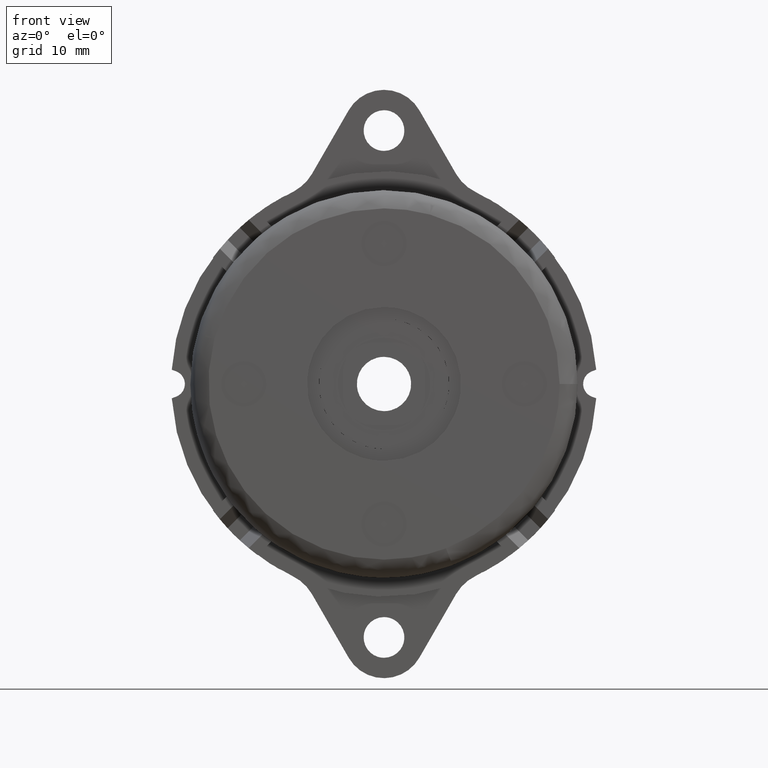
[diagram: clean part render]
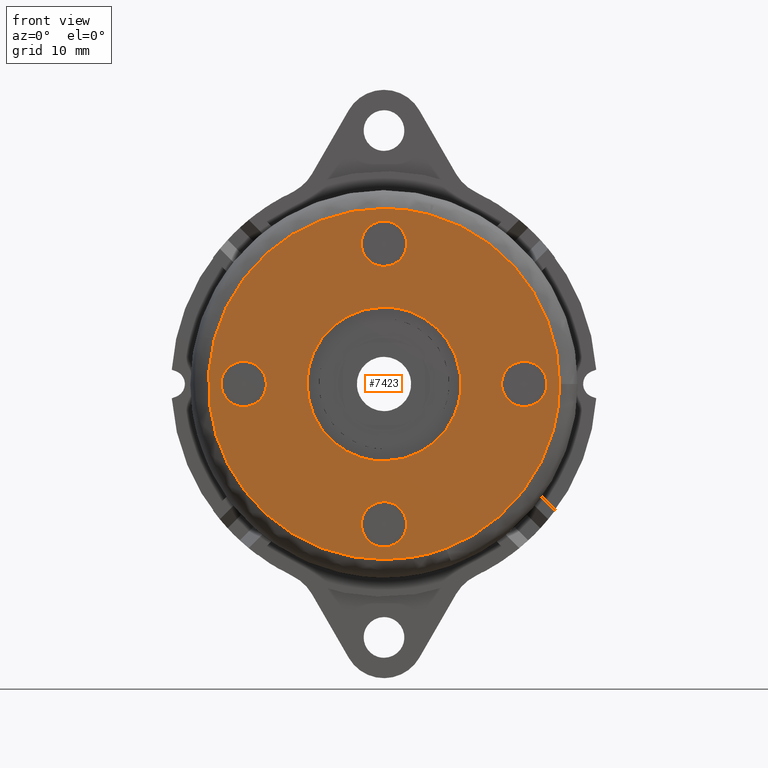
[diagram: same view with one face highlighted and labeled with its STEP entity id]
A machine part, front view. The second image highlights one B-rep face of the part: STEP entity #7423.
In plain terms, the highlighted face is a freeform B-spline surface patch.
Its self-contained STEP definition (entity closure, byte-faithful):
#1836=CARTESIAN_POINT('',(-2.482524246745854,-10.300004999999940,15.795081962013279));
#1837=VERTEX_POINT('',#1836);
#1843=CARTESIAN_POINT('',(0.0,-10.300004999999940,13.0));
#1844=VERTEX_POINT('',#1843);
#1845=CARTESIAN_POINT('',(-2.482524246745853,-10.300004999999940,15.795081962013278));
#1846=CARTESIAN_POINT('',(-2.500000000000000,-10.300004999999944,15.648058467656304));
#1847=CARTESIAN_POINT('',(-2.500000000000000,-10.300004999999940,15.500000000000000));
#1848=CARTESIAN_POINT('',(-2.500000000000000,-10.300004999999940,13.000000000000002));
#1849=CARTESIAN_POINT('',(0.0,-10.300004999999940,13.0));
#1857=(BOUNDED_CURVE()B_SPLINE_CURVE(2,(#1845,#1846,#1847,#1848,#1849),.UNSPECIFIED.,.F.,.U.)B_SPLINE_CURVE_WITH_KNOTS((3,2,3),(0.229562720270202,0.250000000000000,0.500000000000000),.UNSPECIFIED.)CURVE()GEOMETRIC_REPRESENTATION_ITEM()RATIONAL_B_SPLINE_CURVE((0.956027237837488,0.976056237424594,1.0,0.707106781186548,1.0))REPRESENTATION_ITEM(''));
#1858=EDGE_CURVE('',#1837,#1844,#1857,.T.);
#1860=CARTESIAN_POINT('',(2.495336996050746,-10.300004999999940,15.347378651098751));
#1861=VERTEX_POINT('',#1860);
#1862=CARTESIAN_POINT('',(0.0,-10.300004999999940,13.0));
#1863=CARTESIAN_POINT('',(2.351765167143181,-10.300004999999940,13.000000000000002));
#1864=CARTESIAN_POINT('',(2.495336996050746,-10.300004999999940,15.347378651098751));
#1872=(BOUNDED_CURVE()B_SPLINE_CURVE(2,(#1862,#1863,#1864),.UNSPECIFIED.,.F.,.U.)B_SPLINE_CURVE_WITH_KNOTS((3,3),(0.500000000000000,0.739332962233103),.UNSPECIFIED.)CURVE()GEOMETRIC_REPRESENTATION_ITEM()RATIONAL_B_SPLINE_CURVE((1.0,0.719603993293552,0.976072041654202))REPRESENTATION_ITEM(''));
#1873=EDGE_CURVE('',#1844,#1861,#1872,.T.);
#1951=CARTESIAN_POINT('',(0.0,-10.300004999999940,18.0));
#1952=VERTEX_POINT('',#1951);
#1953=CARTESIAN_POINT('',(2.495336996050747,-10.300004999999938,15.347378651098758));
#1954=CARTESIAN_POINT('',(2.500000000000000,-10.300004999999944,15.423618091689249));
#1955=CARTESIAN_POINT('',(2.500000000000000,-10.300004999999940,15.500000000000000));
#1956=CARTESIAN_POINT('',(2.500000000000000,-10.300004999999940,18.000000000000007));
#1957=CARTESIAN_POINT('',(0.0,-10.300004999999940,18.0));
#1965=(BOUNDED_CURVE()B_SPLINE_CURVE(2,(#1953,#1954,#1955,#1956,#1957),.UNSPECIFIED.,.F.,.U.)B_SPLINE_CURVE_WITH_KNOTS((3,2,3),(0.739332962233103,0.750000000000000,1.0),.UNSPECIFIED.)CURVE()GEOMETRIC_REPRESENTATION_ITEM()RATIONAL_B_SPLINE_CURVE((0.976072041654202,0.987502787892996,1.0,0.707106781186548,1.0))REPRESENTATION_ITEM(''));
#1966=EDGE_CURVE('',#1861,#1952,#1965,.T.);
#1968=CARTESIAN_POINT('',(0.0,-10.300004999999940,18.0));
#1969=CARTESIAN_POINT('',(-2.220439579668066,-10.300004999999940,17.999999999999996));
#1970=CARTESIAN_POINT('',(-2.482524246745853,-10.300004999999940,15.795081962013276));
#1978=(BOUNDED_CURVE()B_SPLINE_CURVE(2,(#1968,#1969,#1970),.UNSPECIFIED.,.F.,.U.)B_SPLINE_CURVE_WITH_KNOTS((3,3),(0.0,0.229562720270202),.UNSPECIFIED.)CURVE()GEOMETRIC_REPRESENTATION_ITEM()RATIONAL_B_SPLINE_CURVE((1.0,0.731050543761953,0.956027237837488))REPRESENTATION_ITEM(''));
#1979=EDGE_CURVE('',#1952,#1837,#1978,.T.);
#2026=CARTESIAN_POINT('',(-2.482524246745854,-10.300004999999940,-15.204918037986721));
#2027=VERTEX_POINT('',#2026);
#2033=CARTESIAN_POINT('',(0.0,-10.300004999999940,-18.0));
#2034=VERTEX_POINT('',#2033);
#2035=CARTESIAN_POINT('',(-2.482524246745853,-10.300004999999938,-15.204918037986719));
#2036=CARTESIAN_POINT('',(-2.500000000000000,-10.300004999999944,-15.351941532343693));
#2037=CARTESIAN_POINT('',(-2.500000000000000,-10.300004999999940,-15.500000000000000));
#2038=CARTESIAN_POINT('',(-2.500000000000000,-10.300004999999940,-18.000000000000007));
#2039=CARTESIAN_POINT('',(0.0,-10.300004999999940,-18.0));
#2047=(BOUNDED_CURVE()B_SPLINE_CURVE(2,(#2035,#2036,#2037,#2038,#2039),.UNSPECIFIED.,.F.,.U.)B_SPLINE_CURVE_WITH_KNOTS((3,2,3),(0.229562720270202,0.250000000000000,0.500000000000000),.UNSPECIFIED.)CURVE()GEOMETRIC_REPRESENTATION_ITEM()RATIONAL_B_SPLINE_CURVE((0.956027237837487,0.976056237424594,1.0,0.707106781186548,1.0))REPRESENTATION_ITEM(''));
#2048=EDGE_CURVE('',#2027,#2034,#2047,.T.);
#2050=CARTESIAN_POINT('',(2.495336996050746,-10.300004999999940,-15.652621348901249));
#2051=VERTEX_POINT('',#2050);
#2052=CARTESIAN_POINT('',(0.0,-10.300004999999940,-18.0));
#2053=CARTESIAN_POINT('',(2.351765167143181,-10.300004999999940,-18.000000000000007));
#2054=CARTESIAN_POINT('',(2.495336996050746,-10.300004999999940,-15.652621348901249));
#2062=(BOUNDED_CURVE()B_SPLINE_CURVE(2,(#2052,#2053,#2054),.UNSPECIFIED.,.F.,.U.)B_SPLINE_CURVE_WITH_KNOTS((3,3),(0.500000000000000,0.739332962233103),.UNSPECIFIED.)CURVE()GEOMETRIC_REPRESENTATION_ITEM()RATIONAL_B_SPLINE_CURVE((1.0,0.719603993293552,0.976072041654202))REPRESENTATION_ITEM(''));
#2063=EDGE_CURVE('',#2034,#2051,#2062,.T.);
#2141=CARTESIAN_POINT('',(0.0,-10.300004999999940,-13.0));
#2142=VERTEX_POINT('',#2141);
#2143=CARTESIAN_POINT('',(2.495336996050746,-10.300004999999940,-15.652621348901249));
#2144=CARTESIAN_POINT('',(2.500000000000000,-10.300004999999945,-15.576381908310756));
#2145=CARTESIAN_POINT('',(2.500000000000000,-10.300004999999940,-15.500000000000000));
#2146=CARTESIAN_POINT('',(2.500000000000000,-10.300004999999940,-13.000000000000002));
#2147=CARTESIAN_POINT('',(0.0,-10.300004999999940,-13.0));
#2155=(BOUNDED_CURVE()B_SPLINE_CURVE(2,(#2143,#2144,#2145,#2146,#2147),.UNSPECIFIED.,.F.,.U.)B_SPLINE_CURVE_WITH_KNOTS((3,2,3),(0.739332962233103,0.750000000000000,1.0),.UNSPECIFIED.)CURVE()GEOMETRIC_REPRESENTATION_ITEM()RATIONAL_B_SPLINE_CURVE((0.976072041654202,0.987502787892996,1.0,0.707106781186548,1.0))REPRESENTATION_ITEM(''));
#2156=EDGE_CURVE('',#2051,#2142,#2155,.T.);
#2158=CARTESIAN_POINT('',(0.0,-10.300004999999940,-13.0));
#2159=CARTESIAN_POINT('',(-2.220439579668064,-10.300004999999938,-13.0));
#2160=CARTESIAN_POINT('',(-2.482524246745853,-10.300004999999938,-15.204918037986728));
#2168=(BOUNDED_CURVE()B_SPLINE_CURVE(2,(#2158,#2159,#2160),.UNSPECIFIED.,.F.,.U.)B_SPLINE_CURVE_WITH_KNOTS((3,3),(0.0,0.229562720270202),.UNSPECIFIED.)CURVE()GEOMETRIC_REPRESENTATION_ITEM()RATIONAL_B_SPLINE_CURVE((1.0,0.731050543761954,0.956027237837487))REPRESENTATION_ITEM(''));
#2169=EDGE_CURVE('',#2142,#2027,#2168,.T.);
#2216=CARTESIAN_POINT('',(13.017475753254150,-10.300004999999940,0.295081962013278));
#2217=VERTEX_POINT('',#2216);
#2223=CARTESIAN_POINT('',(15.500000000000000,-10.300004999999940,-2.500000000000000));
#2224=VERTEX_POINT('',#2223);
#2225=CARTESIAN_POINT('',(13.017475753254146,-10.300004999999940,0.295081962013277));
#2226=CARTESIAN_POINT('',(12.999999999999998,-10.300004999999944,0.148058467656307));
#2227=CARTESIAN_POINT('',(13.0,-10.300004999999940,0.0));
#2228=CARTESIAN_POINT('',(13.000000000000002,-10.300004999999940,-2.500000000000000));
#2229=CARTESIAN_POINT('',(15.500000000000000,-10.300004999999940,-2.500000000000000));
#2237=(BOUNDED_CURVE()B_SPLINE_CURVE(2,(#2225,#2226,#2227,#2228,#2229),.UNSPECIFIED.,.F.,.U.)B_SPLINE_CURVE_WITH_KNOTS((3,2,3),(0.229562720270202,0.250000000000000,0.500000000000000),.UNSPECIFIED.)CURVE()GEOMETRIC_REPRESENTATION_ITEM()RATIONAL_B_SPLINE_CURVE((0.956027237837488,0.976056237424594,1.0,0.707106781186548,1.0))REPRESENTATION_ITEM(''));
#2238=EDGE_CURVE('',#2217,#2224,#2237,.T.);
#2240=CARTESIAN_POINT('',(17.995336996050749,-10.300004999999940,-0.152621348901245));
#2241=VERTEX_POINT('',#2240);
#2242=CARTESIAN_POINT('',(15.500000000000000,-10.300004999999940,-2.500000000000000));
#2243=CARTESIAN_POINT('',(17.851765167143189,-10.300004999999940,-2.500000000000000));
#2244=CARTESIAN_POINT('',(17.995336996050749,-10.300004999999940,-0.152621348901245));
#2252=(BOUNDED_CURVE()B_SPLINE_CURVE(2,(#2242,#2243,#2244),.UNSPECIFIED.,.F.,.U.)B_SPLINE_CURVE_WITH_KNOTS((3,3),(0.500000000000000,0.739332962233103),.UNSPECIFIED.)CURVE()GEOMETRIC_REPRESENTATION_ITEM()RATIONAL_B_SPLINE_CURVE((1.0,0.719603993293552,0.976072041654202))REPRESENTATION_ITEM(''));
#2253=EDGE_CURVE('',#2224,#2241,#2252,.T.);
#2331=CARTESIAN_POINT('',(15.500000000000000,-10.300004999999940,2.500000000000000));
#2332=VERTEX_POINT('',#2331);
#2333=CARTESIAN_POINT('',(17.995336996050746,-10.300004999999938,-0.152621348901245));
#2334=CARTESIAN_POINT('',(17.999999999999996,-10.300004999999944,-0.076381908310755));
#2335=CARTESIAN_POINT('',(18.0,-10.300004999999940,0.0));
#2336=CARTESIAN_POINT('',(18.000000000000007,-10.300004999999940,2.500000000000000));
#2337=CARTESIAN_POINT('',(15.500000000000000,-10.300004999999940,2.500000000000000));
#2345=(BOUNDED_CURVE()B_SPLINE_CURVE(2,(#2333,#2334,#2335,#2336,#2337),.UNSPECIFIED.,.F.,.U.)B_SPLINE_CURVE_WITH_KNOTS((3,2,3),(0.739332962233103,0.750000000000000,1.0),.UNSPECIFIED.)CURVE()GEOMETRIC_REPRESENTATION_ITEM()RATIONAL_B_SPLINE_CURVE((0.976072041654202,0.987502787892996,1.0,0.707106781186548,1.0))REPRESENTATION_ITEM(''));
#2346=EDGE_CURVE('',#2241,#2332,#2345,.T.);
#2348=CARTESIAN_POINT('',(15.500000000000000,-10.300004999999940,2.500000000000000));
#2349=CARTESIAN_POINT('',(13.279560420331936,-10.300004999999940,2.500000000000000));
#2350=CARTESIAN_POINT('',(13.017475753254145,-10.300004999999938,0.295081962013278));
#2358=(BOUNDED_CURVE()B_SPLINE_CURVE(2,(#2348,#2349,#2350),.UNSPECIFIED.,.F.,.U.)B_SPLINE_CURVE_WITH_KNOTS((3,3),(0.0,0.229562720270202),.UNSPECIFIED.)CURVE()GEOMETRIC_REPRESENTATION_ITEM()RATIONAL_B_SPLINE_CURVE((1.0,0.731050543761954,0.956027237837488))REPRESENTATION_ITEM(''));
#2359=EDGE_CURVE('',#2332,#2217,#2358,.T.);
#2406=CARTESIAN_POINT('',(-17.982524246745850,-10.300004999999940,0.295081962013277));
#2407=VERTEX_POINT('',#2406);
#2413=CARTESIAN_POINT('',(-15.500000000000000,-10.300004999999940,-2.500000000000000));
#2414=VERTEX_POINT('',#2413);
#2415=CARTESIAN_POINT('',(-17.982524246745854,-10.300004999999938,0.295081962013277));
#2416=CARTESIAN_POINT('',(-18.0,-10.300004999999944,0.148058467656307));
#2417=CARTESIAN_POINT('',(-18.0,-10.300004999999940,0.0));
#2418=CARTESIAN_POINT('',(-18.000000000000007,-10.300004999999940,-2.500000000000000));
#2419=CARTESIAN_POINT('',(-15.500000000000000,-10.300004999999940,-2.500000000000000));
#2427=(BOUNDED_CURVE()B_SPLINE_CURVE(2,(#2415,#2416,#2417,#2418,#2419),.UNSPECIFIED.,.F.,.U.)B_SPLINE_CURVE_WITH_KNOTS((3,2,3),(0.229562720270202,0.250000000000000,0.500000000000000),.UNSPECIFIED.)CURVE()GEOMETRIC_REPRESENTATION_ITEM()RATIONAL_B_SPLINE_CURVE((0.956027237837488,0.976056237424594,1.0,0.707106781186548,1.0))REPRESENTATION_ITEM(''));
#2428=EDGE_CURVE('',#2407,#2414,#2427,.T.);
#2430=CARTESIAN_POINT('',(-13.004663003949251,-10.300004999999940,-0.152621348901245));
#2431=VERTEX_POINT('',#2430);
#2432=CARTESIAN_POINT('',(-15.500000000000000,-10.300004999999940,-2.500000000000000));
#2433=CARTESIAN_POINT('',(-13.148234832856820,-10.300004999999940,-2.500000000000000));
#2434=CARTESIAN_POINT('',(-13.004663003949259,-10.300004999999940,-0.152621348901245));
#2442=(BOUNDED_CURVE()B_SPLINE_CURVE(2,(#2432,#2433,#2434),.UNSPECIFIED.,.F.,.U.)B_SPLINE_CURVE_WITH_KNOTS((3,3),(0.500000000000000,0.739332962233103),.UNSPECIFIED.)CURVE()GEOMETRIC_REPRESENTATION_ITEM()RATIONAL_B_SPLINE_CURVE((1.0,0.719603993293552,0.976072041654202))REPRESENTATION_ITEM(''));
#2443=EDGE_CURVE('',#2414,#2431,#2442,.T.);
#2521=CARTESIAN_POINT('',(-15.500000000000000,-10.300004999999940,2.500000000000000));
#2522=VERTEX_POINT('',#2521);
#2523=CARTESIAN_POINT('',(-13.004663003949256,-10.300004999999938,-0.152621348901245));
#2524=CARTESIAN_POINT('',(-13.000000000000005,-10.300004999999944,-0.076381908310755));
#2525=CARTESIAN_POINT('',(-13.0,-10.300004999999940,0.0));
#2526=CARTESIAN_POINT('',(-13.000000000000002,-10.300004999999940,2.500000000000000));
#2527=CARTESIAN_POINT('',(-15.500000000000000,-10.300004999999940,2.500000000000000));
#2535=(BOUNDED_CURVE()B_SPLINE_CURVE(2,(#2523,#2524,#2525,#2526,#2527),.UNSPECIFIED.,.F.,.U.)B_SPLINE_CURVE_WITH_KNOTS((3,2,3),(0.739332962233103,0.750000000000000,1.0),.UNSPECIFIED.)CURVE()GEOMETRIC_REPRESENTATION_ITEM()RATIONAL_B_SPLINE_CURVE((0.976072041654202,0.987502787892996,1.0,0.707106781186548,1.0))REPRESENTATION_ITEM(''));
#2536=EDGE_CURVE('',#2431,#2522,#2535,.T.);
#2538=CARTESIAN_POINT('',(-15.500000000000000,-10.300004999999940,2.500000000000000));
#2539=CARTESIAN_POINT('',(-17.720439579668064,-10.300004999999940,2.500000000000000));
#2540=CARTESIAN_POINT('',(-17.982524246745857,-10.300004999999940,0.295081962013277));
#2548=(BOUNDED_CURVE()B_SPLINE_CURVE(2,(#2538,#2539,#2540),.UNSPECIFIED.,.F.,.U.)B_SPLINE_CURVE_WITH_KNOTS((3,3),(0.0,0.229562720270202),.UNSPECIFIED.)CURVE()GEOMETRIC_REPRESENTATION_ITEM()RATIONAL_B_SPLINE_CURVE((1.0,0.731050543761954,0.956027237837488))REPRESENTATION_ITEM(''));
#2549=EDGE_CURVE('',#2522,#2407,#2548,.T.);
#2782=CARTESIAN_POINT('',(8.440581880523059,-10.300005000000001,-1.003283368808057));
#2783=VERTEX_POINT('',#2782);
#2789=CARTESIAN_POINT('',(0.0,-10.300005000000001,8.500000000000000));
#2790=VERTEX_POINT('',#2789);
#2791=CARTESIAN_POINT('',(8.440581880523059,-10.300004999999999,-1.003283368808057));
#2792=CARTESIAN_POINT('',(8.500000000000000,-10.300005000000002,-0.503401163845201));
#2793=CARTESIAN_POINT('',(8.500000000000000,-10.300005000000001,1.685221E-016));
#2794=CARTESIAN_POINT('',(8.500000000000002,-10.300004999999999,8.500000000000002));
#2795=CARTESIAN_POINT('',(0.0,-10.300005000000001,8.500000000000000));
#2803=(BOUNDED_CURVE()B_SPLINE_CURVE(2,(#2791,#2792,#2793,#2794,#2795),.UNSPECIFIED.,.F.,.U.)B_SPLINE_CURVE_WITH_KNOTS((3,2,3),(0.229562626204271,0.250000000000000,0.500000000000000),.UNSPECIFIED.)CURVE()GEOMETRIC_REPRESENTATION_ITEM()RATIONAL_B_SPLINE_CURVE((0.956027053464062,0.976056127219501,1.0,0.707106781186548,1.0))REPRESENTATION_ITEM(''));
#2804=EDGE_CURVE('',#2783,#2790,#2803,.T.);
#2806=CARTESIAN_POINT('',(-8.484145786582531,-10.300005000000001,0.518912586100872));
#2807=VERTEX_POINT('',#2806);
#2808=CARTESIAN_POINT('',(0.0,-10.300005000000001,8.500000000000000));
#2809=CARTESIAN_POINT('',(-7.996001568595363,-10.300004999999999,8.500000000000000));
#2810=CARTESIAN_POINT('',(-8.484145786582531,-10.300004999999997,0.518912586100872));
#2818=(BOUNDED_CURVE()B_SPLINE_CURVE(2,(#2808,#2809,#2810),.UNSPECIFIED.,.F.,.U.)B_SPLINE_CURVE_WITH_KNOTS((3,3),(0.500000000000000,0.739332962239749),.UNSPECIFIED.)CURVE()GEOMETRIC_REPRESENTATION_ITEM()RATIONAL_B_SPLINE_CURVE((1.0,0.719603993285766,0.976072041668445))REPRESENTATION_ITEM(''));
#2819=EDGE_CURVE('',#2790,#2807,#2818,.T.);
#2893=CARTESIAN_POINT('',(0.0,-10.300005000000001,-8.500000000000000));
#2894=VERTEX_POINT('',#2893);
#2895=CARTESIAN_POINT('',(-8.484145786582531,-10.300004999999997,0.518912586100872));
#2896=CARTESIAN_POINT('',(-8.500000000000000,-10.300005000000001,0.259698488092745));
#2897=CARTESIAN_POINT('',(-8.500000000000000,-10.300005000000001,1.685221E-016));
#2898=CARTESIAN_POINT('',(-8.500000000000002,-10.300004999999999,-8.500000000000002));
#2899=CARTESIAN_POINT('',(0.0,-10.300005000000001,-8.500000000000000));
#2907=(BOUNDED_CURVE()B_SPLINE_CURVE(2,(#2895,#2896,#2897,#2898,#2899),.UNSPECIFIED.,.F.,.U.)B_SPLINE_CURVE_WITH_KNOTS((3,2,3),(0.739332962239748,0.750000000000000,1.0),.UNSPECIFIED.)CURVE()GEOMETRIC_REPRESENTATION_ITEM()RATIONAL_B_SPLINE_CURVE((0.976072041668443,0.987502787900781,1.0,0.707106781186548,1.0))REPRESENTATION_ITEM(''));
#2908=EDGE_CURVE('',#2807,#2894,#2907,.T.);
#2910=CARTESIAN_POINT('',(0.0,-10.300005000000001,-8.500000000000000));
#2911=CARTESIAN_POINT('',(7.549490339302674,-10.300004999999999,-8.500000000000000));
#2912=CARTESIAN_POINT('',(8.440581880523059,-10.300004999999999,-1.003283368808057));
#2920=(BOUNDED_CURVE()B_SPLINE_CURVE(2,(#2910,#2911,#2912),.UNSPECIFIED.,.F.,.U.)B_SPLINE_CURVE_WITH_KNOTS((3,3),(0.0,0.229562626204271),.UNSPECIFIED.)CURVE()GEOMETRIC_REPRESENTATION_ITEM()RATIONAL_B_SPLINE_CURVE((1.0,0.731050653967046,0.956027053464062))REPRESENTATION_ITEM(''));
#2921=EDGE_CURVE('',#2894,#2783,#2920,.T.);
#4842=CARTESIAN_POINT('',(0.0,-10.300005000000001,-19.399999999999999));
#4843=VERTEX_POINT('',#4842);
#4844=CARTESIAN_POINT('',(6.854058153978697,-10.300005000000001,-18.148881147383609));
#4845=VERTEX_POINT('',#4844);
#4846=CARTESIAN_POINT('',(0.0,-10.300005000000001,-19.399999999999999));
#4847=CARTESIAN_POINT('',(3.541216785099254,-10.300004999999999,-19.400000000000013));
#4848=CARTESIAN_POINT('',(6.854058153978697,-10.300004999999999,-18.148881147383616));
#4856=(BOUNDED_CURVE()B_SPLINE_CURVE(2,(#4846,#4847,#4848),.UNSPECIFIED.,.F.,.U.)B_SPLINE_CURVE_WITH_KNOTS((3,3),(0.500000000000000,0.560000000000775),.UNSPECIFIED.)CURVE()GEOMETRIC_REPRESENTATION_ITEM()RATIONAL_B_SPLINE_CURVE((1.0,0.929705627483863,0.893152553775908))REPRESENTATION_ITEM(''));
#4857=EDGE_CURVE('',#4843,#4845,#4856,.T.);
#4859=CARTESIAN_POINT('',(0.0,-10.300005000000001,19.399999999999999));
#4860=VERTEX_POINT('',#4859);
#4861=CARTESIAN_POINT('',(0.0,-10.300005000000001,19.399999999999999));
#4862=CARTESIAN_POINT('',(-19.400000000000009,-10.300004999999999,19.400000000000009));
#4863=CARTESIAN_POINT('',(-19.399999999999999,-10.300005000000001,1.685221E-016));
#4864=CARTESIAN_POINT('',(-19.400000000000009,-10.300004999999999,-19.400000000000009));
#4865=CARTESIAN_POINT('',(0.0,-10.300005000000001,-19.399999999999999));
#4873=(BOUNDED_CURVE()B_SPLINE_CURVE(2,(#4861,#4862,#4863,#4864,#4865),.UNSPECIFIED.,.F.,.U.)B_SPLINE_CURVE_WITH_KNOTS((3,2,3),(0.0,0.250000000000000,0.500000000000000),.UNSPECIFIED.)CURVE()GEOMETRIC_REPRESENTATION_ITEM()RATIONAL_B_SPLINE_CURVE((1.0,0.707106781186548,1.0,0.707106781186548,1.0))REPRESENTATION_ITEM(''));
#4874=EDGE_CURVE('',#4860,#4843,#4873,.T.);
#4876=CARTESIAN_POINT('',(19.400000000278212,-10.300005000000001,7.708640E-016));
#4877=VERTEX_POINT('',#4876);
#4878=CARTESIAN_POINT('',(19.400000000278215,-10.300005000000002,7.708640E-016));
#4879=CARTESIAN_POINT('',(19.399999999999991,-10.300004999999999,19.400000000000009));
#4880=CARTESIAN_POINT('',(0.0,-10.300005000000001,19.399999999999999));
#4888=(BOUNDED_CURVE()B_SPLINE_CURVE(2,(#4878,#4879,#4880),.UNSPECIFIED.,.F.,.U.)B_SPLINE_CURVE_WITH_KNOTS((3,3),(0.750000000000000,1.0),.UNSPECIFIED.)CURVE()GEOMETRIC_REPRESENTATION_ITEM()RATIONAL_B_SPLINE_CURVE((1.000000000000000,0.707106781186548,1.0))REPRESENTATION_ITEM(''));
#4889=EDGE_CURVE('',#4877,#4860,#4888,.T.);
#4942=CARTESIAN_POINT('',(6.854058153978697,-10.300004999999999,-18.148881147383612));
#4943=CARTESIAN_POINT('',(19.400000000000041,-10.300004999999999,-13.410814136454480));
#4944=CARTESIAN_POINT('',(19.400000000278219,-10.300004999999999,7.708640E-016));
#4952=(BOUNDED_CURVE()B_SPLINE_CURVE(2,(#4942,#4943,#4944),.UNSPECIFIED.,.F.,.U.)B_SPLINE_CURVE_WITH_KNOTS((3,3),(0.560000000000774,0.750000000000001),.UNSPECIFIED.)CURVE()GEOMETRIC_REPRESENTATION_ITEM()RATIONAL_B_SPLINE_CURVE((0.893152553775909,0.777401153702683,1.000000000000001))REPRESENTATION_ITEM(''));
#4953=EDGE_CURVE('',#4845,#4877,#4952,.T.);
#7382=CARTESIAN_POINT('',(-21.338059560585300,-10.300005000000001,-21.338059560571430));
#7383=CARTESIAN_POINT('',(-21.338059560585300,-10.300005000000001,21.338060948167559));
#7384=CARTESIAN_POINT('',(21.338060948459670,-10.300005000000001,-21.338059560571430));
#7385=CARTESIAN_POINT('',(21.338060948459670,-10.300005000000001,21.338060948167559));
#7386=B_SPLINE_SURFACE_WITH_KNOTS('',1,1,((#7382,#7384),(#7383,#7385)),.UNSPECIFIED.,.F.,.F.,.U.,(2,2),(2,2),(0.0,42.676120508738990),(0.0,42.676120509044956),.UNSPECIFIED.);
#7387=ORIENTED_EDGE('',*,*,#4874,.T.);
#7388=ORIENTED_EDGE('',*,*,#4857,.T.);
#7389=ORIENTED_EDGE('',*,*,#4953,.T.);
#7390=ORIENTED_EDGE('',*,*,#4889,.T.);
#7391=EDGE_LOOP('',(#7387,#7388,#7389,#7390));
#7392=FACE_OUTER_BOUND('',#7391,.T.);
#7393=ORIENTED_EDGE('',*,*,#2819,.F.);
#7394=ORIENTED_EDGE('',*,*,#2804,.F.);
#7395=ORIENTED_EDGE('',*,*,#2921,.F.);
#7396=ORIENTED_EDGE('',*,*,#2908,.F.);
#7397=EDGE_LOOP('',(#7393,#7394,#7395,#7396));
#7398=FACE_BOUND('',#7397,.T.);
#7399=ORIENTED_EDGE('',*,*,#2443,.F.);
#7400=ORIENTED_EDGE('',*,*,#2428,.F.);
#7401=ORIENTED_EDGE('',*,*,#2549,.F.);
#7402=ORIENTED_EDGE('',*,*,#2536,.F.);
#7403=EDGE_LOOP('',(#7399,#7400,#7401,#7402));
#7404=FACE_BOUND('',#7403,.T.);
#7405=ORIENTED_EDGE('',*,*,#2253,.F.);
#7406=ORIENTED_EDGE('',*,*,#2238,.F.);
#7407=ORIENTED_EDGE('',*,*,#2359,.F.);
#7408=ORIENTED_EDGE('',*,*,#2346,.F.);
#7409=EDGE_LOOP('',(#7405,#7406,#7407,#7408));
#7410=FACE_BOUND('',#7409,.T.);
#7411=ORIENTED_EDGE('',*,*,#2063,.F.);
#7412=ORIENTED_EDGE('',*,*,#2048,.F.);
#7413=ORIENTED_EDGE('',*,*,#2169,.F.);
#7414=ORIENTED_EDGE('',*,*,#2156,.F.);
#7415=EDGE_LOOP('',(#7411,#7412,#7413,#7414));
#7416=FACE_BOUND('',#7415,.T.);
#7417=ORIENTED_EDGE('',*,*,#1873,.F.);
#7418=ORIENTED_EDGE('',*,*,#1858,.F.);
#7419=ORIENTED_EDGE('',*,*,#1979,.F.);
#7420=ORIENTED_EDGE('',*,*,#1966,.F.);
#7421=EDGE_LOOP('',(#7417,#7418,#7419,#7420));
#7422=FACE_BOUND('',#7421,.T.);
#7423=ADVANCED_FACE('',(#7392,#7398,#7404,#7410,#7416,#7422),#7386,.F.);